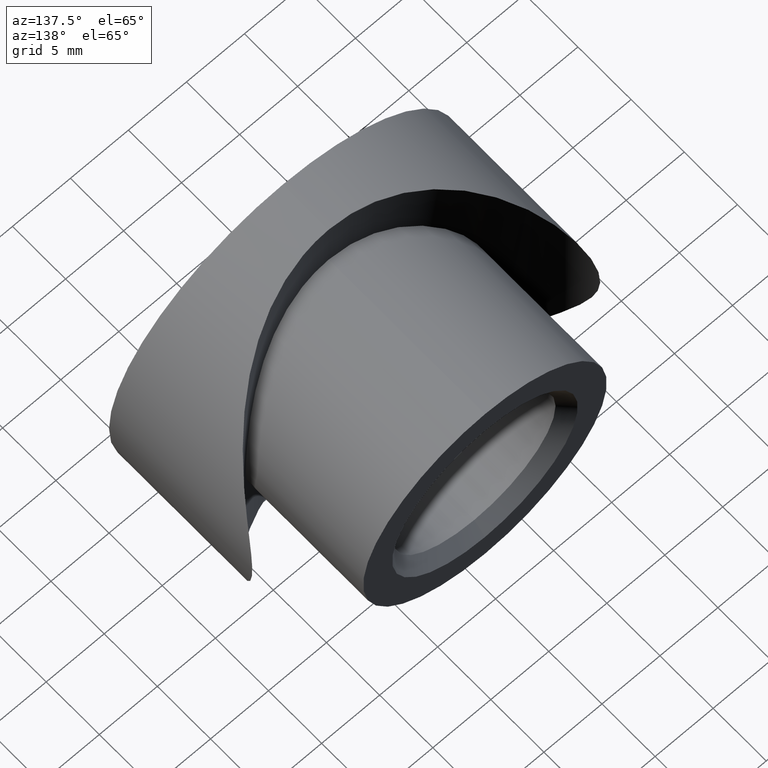
[diagram: clean part render]
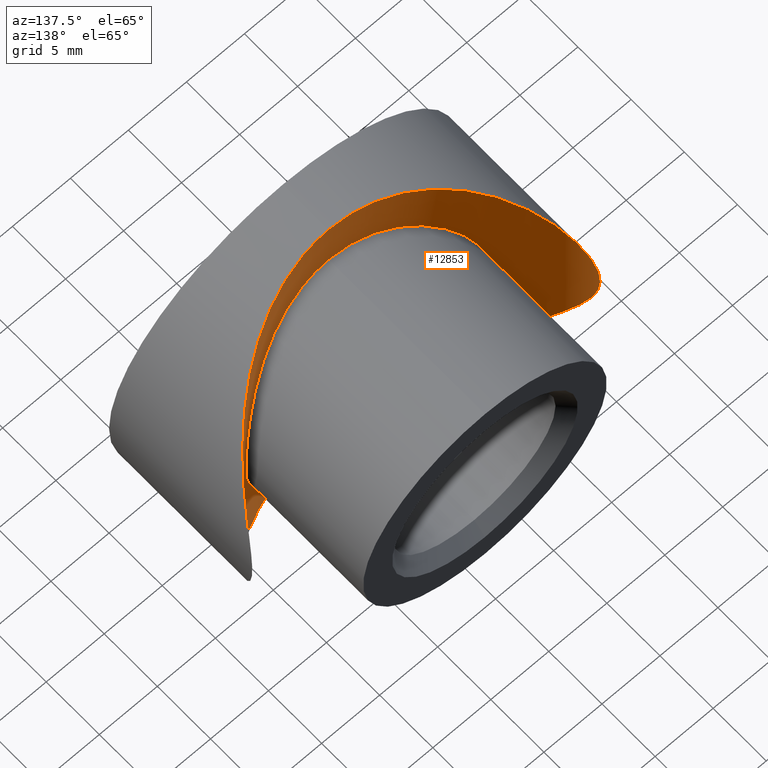
[diagram: same view with one face highlighted and labeled with its STEP entity id]
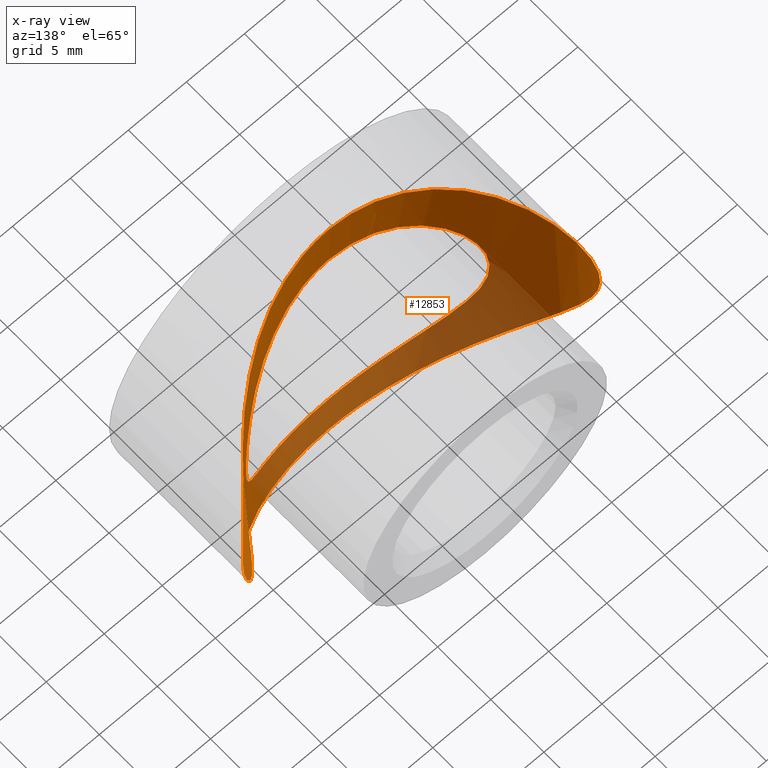
[diagram: x-ray of the same camera — body ghosted, the highlighted face saturated]
A machine part, auxiliary view. The second image highlights one B-rep face of the part: STEP entity #12853.
The next image is the same camera in x-ray: the body ghosted, the highlighted face saturated — about 38% of this face is hidden behind the body in this view.
In plain terms, the highlighted cylindrical surface (partial cylindrical patch) has radius 16.85 mm, axis along (-0, -0, 1).
Its self-contained STEP definition (entity closure, byte-faithful):
#19 = CARTESIAN_POINT ( 'NONE',  ( -2.440493294051567600, 4.474056615321306800, 10.21849543569557100 ) ) ;
#99 = EDGE_CURVE ( 'NONE', #6585, #7809, #5724, .T. ) ;
#359 = FACE_OUTER_BOUND ( 'NONE', #14154, .T. ) ;
#421 = CARTESIAN_POINT ( 'NONE',  ( 3.461674289568071200, 4.646484754574006900, -9.936817656847146900 ) ) ;
#437 = CARTESIAN_POINT ( 'NONE',  ( 10.15094125486535000, 7.674944640244391700, -11.08195168737353200 ) ) ;
#474 = CARTESIAN_POINT ( 'NONE',  ( 14.86345490208285500, 13.21186255510172600, -2.086144652411642000 ) ) ;
#520 = CARTESIAN_POINT ( 'NONE',  ( 11.42496298051143500, 8.736317817504254200, 9.763893191338622700 ) ) ;
#539 = EDGE_CURVE ( 'NONE', #4692, #13563, #5285, .T. ) ;
#575 = CARTESIAN_POINT ( 'NONE',  ( -10.15098324664977800, 7.675207715613304900, 11.08156188437740900 ) ) ;
#621 = CARTESIAN_POINT ( 'NONE',  ( -15.00014806619125600, 13.47419006869983700, -0.2569402839346641700 ) ) ;
#647 = CARTESIAN_POINT ( 'NONE',  ( -5.325484400322363100, 5.160571057418924700, -9.055800181176232800 ) ) ;
#662 = CARTESIAN_POINT ( 'NONE',  ( -7.002433202427369000, 5.816547717601692600, 13.27431832855278800 ) ) ;
#691 = CARTESIAN_POINT ( 'NONE',  ( 8.333667941598610800, 6.498580560797747400, 6.422606914261787200 ) ) ;
#714 = CARTESIAN_POINT ( 'NONE',  ( -7.028626094143886500, 5.804127622911130900, -13.28960197094400000 ) ) ;
#748 = CARTESIAN_POINT ( 'NONE',  ( 1.764616041712050000, 4.389125962453866800, 10.35651631830706700 ) ) ;
#777 = CARTESIAN_POINT ( 'NONE',  ( -2.666443716626810900, 4.504179619731610600, -14.77035801763575100 ) ) ;
#798 = CARTESIAN_POINT ( 'NONE',  ( 5.329144184981958100, 5.153901114324991500, 9.072014395253605200 ) ) ;
#842 = CARTESIAN_POINT ( 'NONE',  ( 10.21912335245930800, 7.752245734262817900, 2.437730159121762200 ) ) ;
#1040 = CARTESIAN_POINT ( 'NONE',  ( -2.784004973221847500, 4.528125502929316100, 10.13020257891039600 ) ) ;
#1094 = CARTESIAN_POINT ( 'NONE',  ( -5.611547982887175000, 5.259048761976461400, 8.881155952800050100 ) ) ;
#1430 = ORIENTED_EDGE ( 'NONE', *, *, #99, .T. ) ;
#1446 = CARTESIAN_POINT ( 'NONE',  ( 10.13257557481867000, 7.660737727560588800, 11.09929284137118100 ) ) ;
#1530 = CARTESIAN_POINT ( 'NONE',  ( 7.846136914485313700, 6.230635582022571800, 12.79375531880228900 ) ) ;
#1578 = CARTESIAN_POINT ( 'NONE',  ( 14.57360096830064000, 12.68965752950876600, -3.586624822361435900 ) ) ;
#1629 = CARTESIAN_POINT ( 'NONE',  ( 14.97275876491494800, 13.42000564760817300, -1.044407058909074100 ) ) ;
#1671 = CARTESIAN_POINT ( 'NONE',  ( -2.143957306134153500, 4.428349662440453500, -14.85569876551880600 ) ) ;
#1716 = CARTESIAN_POINT ( 'NONE',  ( -13.00775074666562500, 10.41298967186178000, 7.525084228617783000 ) ) ;
#1756 = CARTESIAN_POINT ( 'NONE',  ( -8.326004503825913600, 6.498751345552173000, -6.406247300664215800 ) ) ;
#1772 = CARTESIAN_POINT ( 'NONE',  ( -14.77906531523416300, 13.05392880384393800, -2.613598029027482300 ) ) ;
#1822 = CARTESIAN_POINT ( 'NONE',  ( -5.648328352116427800, 5.267222920000024900, -13.90504092608243500 ) ) ;
#1865 = FACE_BOUND ( 'NONE', #8793, .T. ) ;
#1868 = CARTESIAN_POINT ( 'NONE',  ( -0.5322814907385078300, 4.306282967144005300, 14.99294320153237200 ) ) ;
#1944 = CARTESIAN_POINT ( 'NONE',  ( 6.163578132858272200, 5.464946001804571000, 8.507238702020488900 ) ) ;
#2139 = CARTESIAN_POINT ( 'NONE',  ( -8.326075515742022800, 6.498802103674096400, 6.406111241685457500 ) ) ;
#2180 = CARTESIAN_POINT ( 'NONE',  ( -6.451465951790726000, 5.572506776543503900, 8.311810534515849700 ) ) ;
#2229 = CARTESIAN_POINT ( 'NONE',  ( -10.35599211043277600, 7.857755800549794500, 1.767796691163384400 ) ) ;
#2308 = B_SPLINE_CURVE_WITH_KNOTS ( 'NONE', 3,
 ( #11494, #8064, #2809, #3872, #421, #13754, #7125, #8257, #2624, #10494, #7032, #8353, #8509, #13856, #11692, #6283, #10699, #5121, #3047, #12810, #6174, #4165, #8410, #842, #2959, #2905, #12850, #9485, #12697, #691, #7352, #13963, #6228, #2857, #1944, #798, #11641, #11791, #13906, #748, #6124, #9629, #13810, #8462 ),
 .UNSPECIFIED., .F., .F.,
 ( 4, 2, 2, 2, 2, 2, 2, 2, 2, 2, 2, 2, 2, 2, 2, 2, 2, 2, 2, 2, 2, 4 ),
 ( 1.417752910947001400E-019, 0.002110592870796097200, 0.004221185741592194500, 0.006331778612388292600, 0.008442371483184388900, 0.009497667918582440600, 0.01055296435398049100, 0.01266355722477659200, 0.01477415009557269400, 0.01582944653097074000, 0.01688474296636879200, 0.01899533583716489200, 0.02005063227256294300, 0.02110592870796099500, 0.02321652157875710200, 0.02532711444955320500, 0.02638241088495125700, 0.02743770732034931200, 0.02954830019114541200, 0.03165889306194151500, 0.03271418949733956300, 0.03376948593273761800 ),
 .UNSPECIFIED. ) ;
#2392 = CARTESIAN_POINT ( 'NONE',  ( -1.209609030241673400E-016, 4.300000000000002500, -15.00000000000000000 ) ) ;
#2543 = CARTESIAN_POINT ( 'NONE',  ( 14.78138066849109600, 13.05815067896042500, -2.600866842571937000 ) ) ;
#2592 = CARTESIAN_POINT ( 'NONE',  ( 11.99167648984729000, 9.305942778690740300, -9.022788674732321800 ) ) ;
#2624 = CARTESIAN_POINT ( 'NONE',  ( 6.969573530202914000, 5.800002265509831100, -7.881590885390978400 ) ) ;
#2645 = CARTESIAN_POINT ( 'NONE',  ( 14.99893404613760800, 13.47181774934421300, 0.5695243902552720200 ) ) ;
#2682 = CARTESIAN_POINT ( 'NONE',  ( 4.181988682952525200, 4.819197241483200500, -14.41452241154284600 ) ) ;
#2781 = CARTESIAN_POINT ( 'NONE',  ( -1.335934497031235900, 4.350924231119592800, 14.94277808804010000 ) ) ;
#2809 = CARTESIAN_POINT ( 'NONE',  ( 1.414279777334051400, 4.345258246280131700, -10.42779930872081100 ) ) ;
#2831 = CARTESIAN_POINT ( 'NONE',  ( -14.99325789573668100, 13.46067896105227000, -0.5229043018592171000 ) ) ;
#2857 = CARTESIAN_POINT ( 'NONE',  ( 6.431756106645177200, 5.573275251292960400, 8.306324296954375800 ) ) ;
#2875 = CARTESIAN_POINT ( 'NONE',  ( -5.162845310492208700, 5.102250667659851600, 14.09303416019651300 ) ) ;
#2905 = CARTESIAN_POINT ( 'NONE',  ( 9.925958034858357600, 7.533312057363637800, 3.441734859534335600 ) ) ;
#2928 = CARTESIAN_POINT ( 'NONE',  ( 1.836970246836746200E-015, 4.300000000000000700, 15.00000000000000000 ) ) ;
#2959 = CARTESIAN_POINT ( 'NONE',  ( 10.13136139422028700, 7.685440975040791900, 2.779513995792413100 ) ) ;
#2983 = CARTESIAN_POINT ( 'NONE',  ( -12.75905726850694100, 10.13769984885849200, -7.900339878895066700 ) ) ;
#3047 = CARTESIAN_POINT ( 'NONE',  ( 10.40958307178921800, 7.899899136998402400, -1.419496122518947300 ) ) ;
#3195 = CARTESIAN_POINT ( 'NONE',  ( -6.965977455396999800, 5.798280431981828200, 7.885044108746456900 ) ) ;
#3292 = CARTESIAN_POINT ( 'NONE',  ( -10.48198834204433900, 7.957102770271713000, 0.7104192394843993300 ) ) ;
#3343 = CARTESIAN_POINT ( 'NONE',  ( -10.14868047121016700, 7.697927959930035000, -2.783962094005773200 ) ) ;
#3658 = CARTESIAN_POINT ( 'NONE',  ( 1.836970246836746200E-015, 4.300000000000000700, 15.00000000000000000 ) ) ;
#3746 = CARTESIAN_POINT ( 'NONE',  ( 7.859948319320120700, 6.237839921504229500, -12.78536116235524700 ) ) ;
#3795 = CARTESIAN_POINT ( 'NONE',  ( 13.44399684375407800, 10.97225253245963600, -6.717971975358057800 ) ) ;
#3872 = CARTESIAN_POINT ( 'NONE',  ( 2.784865414517606400, 4.517379721739101400, -10.14808899914451800 ) ) ;
#3876 = DIRECTION ( 'NONE',  ( -0.0000000000000000000, -0.0000000000000000000, 1.000000000000000000 ) ) ;
#3877 = CARTESIAN_POINT ( 'NONE',  ( -2.805173298260895900, 4.520744013439695200, -10.14258759114967900 ) ) ;
#3891 = CARTESIAN_POINT ( 'NONE',  ( -14.56759476893175500, 12.67930064239109100, 3.610692206479272600 ) ) ;
#3933 = CARTESIAN_POINT ( 'NONE',  ( -1.076218406673221200, 4.325853754699199500, -14.97097500777757300 ) ) ;
#3990 = CARTESIAN_POINT ( 'NONE',  ( -13.98303764632314700, 11.74270247216324800, 5.448795554080427400 ) ) ;
#4042 = ORIENTED_EDGE ( 'NONE', *, *, #7633, .T. ) ;
#4045 = CARTESIAN_POINT ( 'NONE',  ( -11.43397731633539000, 8.745240753009067400, -9.752422061477974000 ) ) ;
#4093 = CARTESIAN_POINT ( 'NONE',  ( -1.066943131721263900, 4.331683811332991900, 14.96440115017742800 ) ) ;
#4165 = CARTESIAN_POINT ( 'NONE',  ( 10.50025710348714000, 7.971718591966822300, 0.7077182890860049800 ) ) ;
#4308 = CARTESIAN_POINT ( 'NONE',  ( -9.073478233209179700, 6.950295261349985800, -5.294965552928632100 ) ) ;
#4359 = CARTESIAN_POINT ( 'NONE',  ( -7.901633885500487500, 6.265601616771545100, 6.922858995689432000 ) ) ;
#4408 = CARTESIAN_POINT ( 'NONE',  ( -10.40978453266293100, 7.900056494442805100, 1.418859077609405900 ) ) ;
#4692 = VERTEX_POINT ( 'NONE', #6574 ) ;
#4803 = CARTESIAN_POINT ( 'NONE',  ( 12.25999243050092200, 9.584742660744014500, -8.654428079111168500 ) ) ;
#4853 = CARTESIAN_POINT ( 'NONE',  ( 6.990948076457038400, 5.811292619339082100, 13.28038721688914400 ) ) ;
#4906 = CARTESIAN_POINT ( 'NONE',  ( 14.85580664443929200, 13.19750104174214300, 2.139843478267389600 ) ) ;
#4944 = CARTESIAN_POINT ( 'NONE',  ( 14.44802696036877900, 12.47516734027195000, -4.060478104063554900 ) ) ;
#4980 = CARTESIAN_POINT ( 'NONE',  ( -8.525651947809647500, 6.614408464622582300, -6.138026012869407700 ) ) ;
#4998 = CARTESIAN_POINT ( 'NONE',  ( -1.209609030241673400E-016, 4.300000000000002500, -15.00000000000000000 ) ) ;
#5048 = CARTESIAN_POINT ( 'NONE',  ( -0.2657497645407889700, 4.300000000000002500, 15.00000000000000400 ) ) ;
#5082 = CARTESIAN_POINT ( 'NONE',  ( -7.900451018919068400, 6.264963492491887100, -6.924249358064567000 ) ) ;
#5097 = CARTESIAN_POINT ( 'NONE',  ( -14.96517098375472300, 13.40615742702241200, -1.055873412847778000 ) ) ;
#5121 = CARTESIAN_POINT ( 'NONE',  ( 10.35635509687193500, 7.858039068241345700, -1.765680603605728200 ) ) ;
#5138 = CARTESIAN_POINT ( 'NONE',  ( -7.874109621070600100, 6.225036902050723200, -12.80306368135971000 ) ) ;
#5196 = CARTESIAN_POINT ( 'NONE',  ( -14.43998511081309600, 12.46175235854891700, 4.088953916542727100 ) ) ;
#5285 = B_SPLINE_CURVE_WITH_KNOTS ( 'NONE', 3,
 ( #2928, #5048, #1868, #4093, #2781, #12825, #8430, #10622, #11766, #2875, #10667, #6143, #662, #13833, #9445, #8378, #575, #13929, #12717, #7236, #13777, #1716, #9508, #3990, #11659, #5196, #3891, #9556, #9397, #11569, #8328, #621, #2831, #5097, #10577, #12773, #1772, #12869, #6101, #8222, #7181, #10462, #7288, #6195, #2983, #6301, #4045, #11717, #13876, #7138, #6251, #5138, #714, #1822, #7327, #8280, #10520, #777, #1671, #3933, #9357, #4998 ),
 .UNSPECIFIED., .F., .F.,
 ( 4, 2, 2, 2, 2, 2, 2, 2, 2, 2, 2, 2, 2, 2, 2, 2, 2, 2, 2, 2, 2, 2, 2, 2, 2, 2, 2, 2, 2, 2, 4 ),
 ( 0.05101021095424455200, 0.05180678021875403200, 0.05260334948326352000, 0.05419648801228248900, 0.05578962654130145700, 0.05738276507032041800, 0.05897590359933938700, 0.06056904212835835500, 0.06375531918639629200, 0.06534845771541525300, 0.06694159624443421500, 0.07012787330247215200, 0.07172101183149111300, 0.07331415036051007500, 0.07490728888952903600, 0.07650042741854799800, 0.07729699668305747800, 0.07809356594756697300, 0.07968670447658592100, 0.08127984300560489600, 0.08287298153462384400, 0.08446612006364281900, 0.08605925859266178000, 0.08924553565069970300, 0.09083867417971866500, 0.09243181270873762600, 0.09561808976677554900, 0.09721122829579451100, 0.09880436682481347200, 0.1003975053538324300, 0.1019906438828514000 ),
 .UNSPECIFIED. ) ;
#5420 = CARTESIAN_POINT ( 'NONE',  ( -3.450228734883388400, 4.653536222442165000, 9.923084684596412700 ) ) ;
#5468 = CARTESIAN_POINT ( 'NONE',  ( -10.49982363229692000, 7.971373222495260300, 0.3572885946436344400 ) ) ;
#5510 = CARTESIAN_POINT ( 'NONE',  ( -10.35936459809205700, 7.860382643082397500, -1.748600922364211400 ) ) ;
#5693 = ORIENTED_EDGE ( 'NONE', *, *, #539, .F. ) ;
#5724 = B_SPLINE_CURVE_WITH_KNOTS ( 'NONE', 3,
 ( #14248, #8797, #11977, #19, #1040, #5420, #12027, #7593, #8696, #7643, #1094, #2180, #3195, #7682, #4359, #2139, #6613, #9809, #13093, #9863, #14205, #2229, #4408, #3292, #5468, #9905, #13190, #12087, #5510, #3343, #9761, #13147, #10893, #4308, #6513, #4980, #1756, #5082, #13911, #6179, #10606, #12660, #647, #6086, #12756, #11553, #3877, #13761, #8316, #11499 ),
 .UNSPECIFIED., .F., .F.,
 ( 4, 2, 2, 2, 2, 2, 2, 2, 2, 2, 2, 2, 2, 2, 2, 2, 2, 2, 2, 2, 2, 2, 2, 2, 4 ),
 ( 0.03376948593273761800, 0.03587532717272544400, 0.03692824779271935300, 0.03798116841271326900, 0.03903408903270717800, 0.04008700965270108700, 0.04219285089268890600, 0.04324577151268281500, 0.04429869213267673100, 0.04640453337266455000, 0.04851037461265236800, 0.04956329523264627100, 0.05061621585264018000, 0.05166913647263408900, 0.05272205709262799100, 0.05482789833261581000, 0.05588081895260971900, 0.05693373957260362800, 0.05798666019259753100, 0.05903958081259144700, 0.06114542205257926500, 0.06219834267257317400, 0.06325126329256708400, 0.06535710453255491600, 0.06746294577254273500 ),
 .UNSPECIFIED. ) ;
#5914 = CARTESIAN_POINT ( 'NONE',  ( 8.253771874938468800, 6.452926759699822800, 12.53406303612567100 ) ) ;
#5998 = CARTESIAN_POINT ( 'NONE',  ( 14.43532073380668700, 12.45404174444464700, 4.105032956533770000 ) ) ;
#6049 = CARTESIAN_POINT ( 'NONE',  ( 14.77182981645566400, 13.04067785760763000, 2.654117666747686200 ) ) ;
#6086 = CARTESIAN_POINT ( 'NONE',  ( -4.721420999969095300, 4.971903518986631600, -9.384907285664525000 ) ) ;
#6101 = CARTESIAN_POINT ( 'NONE',  ( -14.44399217823189700, 12.46845515835569700, -4.074659422287441000 ) ) ;
#6124 = CARTESIAN_POINT ( 'NONE',  ( 1.418201932744944400, 4.356086084407026600, 10.40979524970072500 ) ) ;
#6143 = CARTESIAN_POINT ( 'NONE',  ( -6.559926235587895800, 5.621551197036414000, 13.49889665633021700 ) ) ;
#6174 = CARTESIAN_POINT ( 'NONE',  ( 10.49987041450948400, 7.971410496351680300, -0.3595655469009801900 ) ) ;
#6179 = CARTESIAN_POINT ( 'NONE',  ( -6.965115453482495100, 5.797903316631781000, -7.885754440222853200 ) ) ;
#6195 = CARTESIAN_POINT ( 'NONE',  ( -12.99422156758266500, 10.41712780554143500, -7.507295084772245300 ) ) ;
#6228 = CARTESIAN_POINT ( 'NONE',  ( 6.948796315636088600, 5.796952410802858500, 7.878879343240670100 ) ) ;
#6251 = CARTESIAN_POINT ( 'NONE',  ( -9.049063134012019600, 6.928700381237637100, -11.97265496391931300 ) ) ;
#6283 = CARTESIAN_POINT ( 'NONE',  ( 9.935856290285059300, 7.537294125792824300, -3.462782069783514800 ) ) ;
#6301 = CARTESIAN_POINT ( 'NONE',  ( -12.00201883562612800, 9.299209652147251100, -9.043627270165085700 ) ) ;
#6513 = CARTESIAN_POINT ( 'NONE',  ( -8.899387944290790400, 6.840176219270280600, -5.582382886085800200 ) ) ;
#6574 = CARTESIAN_POINT ( 'NONE',  ( 1.836970246836746200E-015, 4.300000000000000700, 15.00000000000000000 ) ) ;
#6585 = VERTEX_POINT ( 'NONE', #8209 ) ;
#6613 = CARTESIAN_POINT ( 'NONE',  ( -8.525017774536793900, 6.614050403424635700, 6.138824014883322600 ) ) ;
#6907 = CARTESIAN_POINT ( 'NONE',  ( -1.209609030241673400E-016, 4.300000000000002500, -15.00000000000000000 ) ) ;
#6916 = CARTESIAN_POINT ( 'NONE',  ( 1.060494380857258200, 4.325119671351614200, 14.97179856256042100 ) ) ;
#6965 = CARTESIAN_POINT ( 'NONE',  ( 6.541798558420769200, 5.613887657651731400, 13.50770981598470600 ) ) ;
#7000 = CARTESIAN_POINT ( 'NONE',  ( 13.97796427244357900, 11.73503882822342200, 5.462191796381528500 ) ) ;
#7032 = CARTESIAN_POINT ( 'NONE',  ( 7.899254498436381900, 6.264324412577663800, -6.925628716662942000 ) ) ;
#7047 = CARTESIAN_POINT ( 'NONE',  ( 13.99110574761020100, 11.75464297532221500, -5.428352384317932400 ) ) ;
#7097 = CARTESIAN_POINT ( 'NONE',  ( 8.272414721313655400, 6.463356360601492800, -12.52184461082290000 ) ) ;
#7125 = CARTESIAN_POINT ( 'NONE',  ( 5.326437407388772800, 5.152689141092361400, -9.074318495472207100 ) ) ;
#7138 = CARTESIAN_POINT ( 'NONE',  ( -9.426397277330545800, 7.176551912363677000, -11.67750838880630000 ) ) ;
#7181 = CARTESIAN_POINT ( 'NONE',  ( -13.98914351858305100, 11.75178312325456400, -5.433168437229279700 ) ) ;
#7236 = CARTESIAN_POINT ( 'NONE',  ( -11.98306091132917800, 9.297277929764920400, 9.034128449081267200 ) ) ;
#7288 = CARTESIAN_POINT ( 'NONE',  ( -13.42755586063776200, 10.96446696046471900, -6.701493657889155700 ) ) ;
#7292 = EDGE_CURVE ( 'NONE', #13563, #4692, #10372, .T. ) ;
#7327 = CARTESIAN_POINT ( 'NONE',  ( -5.167033004524740600, 5.103700707654264000, -14.09138109826325200 ) ) ;
#7352 = CARTESIAN_POINT ( 'NONE',  ( 7.910490121228924000, 6.262883942689890100, 6.937275636108480200 ) ) ;
#7504 = AXIS2_PLACEMENT_3D ( 'NONE', #11551, #3876, #8357 ) ;
#7593 = CARTESIAN_POINT ( 'NONE',  ( -4.408115415652025200, 4.883545068547489300, 9.536074794243152300 ) ) ;
#7633 = EDGE_CURVE ( 'NONE', #7809, #6585, #2308, .T. ) ;
#7638 = CARTESIAN_POINT ( 'NONE',  ( -1.463510268258609300E-016, 4.300000000000001600, -10.50000000000000000 ) ) ;
#7643 = CARTESIAN_POINT ( 'NONE',  ( -5.318564483717355400, 5.158291973930054100, 9.059812979693660400 ) ) ;
#7682 = CARTESIAN_POINT ( 'NONE',  ( -7.675155030550298500, 6.147203455420012100, 7.173157316238961900 ) ) ;
#7809 = VERTEX_POINT ( 'NONE', #7638 ) ;
#7989 = CARTESIAN_POINT ( 'NONE',  ( 3.672130553410284400, 4.696711018873685400, -14.55303561643875700 ) ) ;
#8032 = CARTESIAN_POINT ( 'NONE',  ( 11.41708273195578900, 8.751120276795928600, -9.739673628911338800 ) ) ;
#8064 = CARTESIAN_POINT ( 'NONE',  ( 0.7147938796123114400, 4.300000000000001600, -10.49999999999999800 ) ) ;
#8086 = CARTESIAN_POINT ( 'NONE',  ( 14.14376593525134000, 11.98746433354530400, 5.018332933447280400 ) ) ;
#8135 = CARTESIAN_POINT ( 'NONE',  ( 13.01216909519723000, 10.41844268921738200, -7.517287710855883100 ) ) ;
#8175 = CARTESIAN_POINT ( 'NONE',  ( 2.635966951328876400, 4.499120664519748100, 14.77605992027063700 ) ) ;
#8209 = CARTESIAN_POINT ( 'NONE',  ( 1.308673658326136700E-014, 4.299999999999901200, 10.50000000000016500 ) ) ;
#8222 = CARTESIAN_POINT ( 'NONE',  ( -14.15298966602539800, 12.00172068661634500, -4.992458609326505800 ) ) ;
#8257 = CARTESIAN_POINT ( 'NONE',  ( 6.454450770850108700, 5.573576937626946800, -8.309889100269140600 ) ) ;
#8280 = CARTESIAN_POINT ( 'NONE',  ( -4.188347804747557700, 4.820894276910030900, -14.41259844694235200 ) ) ;
#8316 = CARTESIAN_POINT ( 'NONE',  ( -0.7131846461751391000, 4.300000000000001600, -10.50000000000000200 ) ) ;
#8328 = CARTESIAN_POINT ( 'NONE',  ( -14.99969663701134200, 13.47330792371734500, 0.5393904581189303800 ) ) ;
#8353 = CARTESIAN_POINT ( 'NONE',  ( 8.325260658733650800, 6.498324522799771700, -6.407229488341706700 ) ) ;
#8357 = DIRECTION ( 'NONE',  ( 1.000000000000000000, 0.0000000000000000000, 0.0000000000000000000 ) ) ;
#8378 = CARTESIAN_POINT ( 'NONE',  ( -9.446709176307793500, 7.167193835095333500, 11.69116089175237100 ) ) ;
#8410 = CARTESIAN_POINT ( 'NONE',  ( 10.42896389989966700, 7.914048284840936800, 1.406681790766238300 ) ) ;
#8430 = CARTESIAN_POINT ( 'NONE',  ( -2.653514126291002500, 4.502106402088466900, 14.77269377907057900 ) ) ;
#8462 = CARTESIAN_POINT ( 'NONE',  ( 1.308673658326136700E-014, 4.299999999999901200, 10.50000000000016500 ) ) ;
#8509 = CARTESIAN_POINT ( 'NONE',  ( 8.526722758909015100, 6.615038404519863100, -6.136531981277966200 ) ) ;
#8696 = CARTESIAN_POINT ( 'NONE',  ( -4.716755428665000400, 4.970566388631252300, 9.387201799292729000 ) ) ;
#8793 = EDGE_LOOP ( 'NONE', ( #4042, #1430 ) ) ;
#8797 = CARTESIAN_POINT ( 'NONE',  ( -0.7082383648102347200, 4.299999999999991800, 10.50000000000002000 ) ) ;
#9115 = CARTESIAN_POINT ( 'NONE',  ( 14.15709574510789700, 12.00807215158228500, -4.980924165751826400 ) ) ;
#9168 = CARTESIAN_POINT ( 'NONE',  ( 5.164883504442180100, 5.102940254754956900, -14.09224836861581700 ) ) ;
#9208 = CARTESIAN_POINT ( 'NONE',  ( 7.001321540830851100, 5.815959356028688600, -13.27500449401593300 ) ) ;
#9253 = CARTESIAN_POINT ( 'NONE',  ( 14.96882267322270700, 13.41232731916936600, 1.099212875681463600 ) ) ;
#9357 = CARTESIAN_POINT ( 'NONE',  ( -0.5401560524410131700, 4.300000000000002500, -15.00000000000000200 ) ) ;
#9397 = CARTESIAN_POINT ( 'NONE',  ( -14.85861374278175100, 13.20275139574639800, 2.121870652778446300 ) ) ;
#9445 = CARTESIAN_POINT ( 'NONE',  ( -8.269833434487631900, 6.461857653447498100, 12.52360747869698600 ) ) ;
#9485 = CARTESIAN_POINT ( 'NONE',  ( 9.410165324295569200, 7.168717958224782200, 4.707973348129954200 ) ) ;
#9508 = CARTESIAN_POINT ( 'NONE',  ( -13.43856042997013300, 10.96530815620931800, 6.727849047405060300 ) ) ;
#9556 = CARTESIAN_POINT ( 'NONE',  ( -14.77637379086408000, 13.04899126333831900, 2.628819726493829100 ) ) ;
#9629 = CARTESIAN_POINT ( 'NONE',  ( 0.7143741115990192000, 4.311457576290459700, 10.48164125943119300 ) ) ;
#9761 = CARTESIAN_POINT ( 'NONE',  ( -9.943335118550265900, 7.542720332200675100, -3.442328668481938100 ) ) ;
#9809 = CARTESIAN_POINT ( 'NONE',  ( -9.083275744307608000, 6.951210027813482700, 5.309280094361094300 ) ) ;
#9863 = CARTESIAN_POINT ( 'NONE',  ( -9.939805937864942800, 7.540092965993865800, 3.452984079600334200 ) ) ;
#9905 = CARTESIAN_POINT ( 'NONE',  ( -10.50017377137898400, 7.971652196843844100, -0.3468461042711709600 ) ) ;
#10230 = CARTESIAN_POINT ( 'NONE',  ( 2.111734619650756700, 4.424515752859717200, 14.86001269938503600 ) ) ;
#10269 = CARTESIAN_POINT ( 'NONE',  ( 9.445496070066989000, 7.166563697048010400, -11.69189270846919000 ) ) ;
#10367 = CARTESIAN_POINT ( 'NONE',  ( 5.639371925220494600, 5.264077237768026100, -13.90863078812606600 ) ) ;
#10372 = B_SPLINE_CURVE_WITH_KNOTS ( 'NONE', 3,
 ( #2392, #13457, #11513, #7989, #2682, #9168, #10367, #12450, #9208, #3746, #7097, #10269, #437, #12486, #8032, #2592, #4803, #8135, #3795, #7047, #9115, #4944, #1578, #2543, #474, #1629, #11466, #2645, #9253, #4906, #6049, #13687, #5998, #8086, #7000, #12582, #11430, #13542, #520, #1446, #13639, #5914, #1530, #4853, #6965, #12527, #11334, #8175, #10230, #6916, #12629, #3658 ),
 .UNSPECIFIED., .F., .F.,
 ( 4, 2, 2, 2, 2, 2, 2, 2, 2, 2, 2, 2, 2, 2, 2, 2, 2, 2, 2, 2, 2, 2, 2, 2, 2, 4 ),
 ( 1.345763858265831100E-020, 0.003188138184640286700, 0.004782207276960428700, 0.006376276369280571600, 0.007970345461600714500, 0.009564414553920853900, 0.01275255273856113400, 0.01434662183088127700, 0.01594069092320142200, 0.01912882910784170800, 0.02072289820016185200, 0.02231696729248199400, 0.02391103638480213800, 0.02550510547712228300, 0.02709917456944242400, 0.02869324366176256500, 0.03028731275408271300, 0.03188138184640285800, 0.03506952003104313300, 0.03825765821568342200, 0.04144579640032370500, 0.04303986549264384600, 0.04463393458496398700, 0.04782207276960427600, 0.04941614186192441700, 0.05101021095424455200 ),
 .UNSPECIFIED. ) ;
#10462 = CARTESIAN_POINT ( 'NONE',  ( -13.62644274158377800, 11.23321246288922400, -6.287727241313606700 ) ) ;
#10494 = CARTESIAN_POINT ( 'NONE',  ( 7.675201938972725700, 6.147250365135433500, -7.173031626542932100 ) ) ;
#10520 = CARTESIAN_POINT ( 'NONE',  ( -3.688461600289147000, 4.700425256278217400, -14.54883669185504600 ) ) ;
#10577 = CARTESIAN_POINT ( 'NONE',  ( -14.94377499687288100, 13.36477907024834400, -1.323947997046356100 ) ) ;
#10606 = CARTESIAN_POINT ( 'NONE',  ( -6.451729291112403800, 5.572711916710136200, -8.311383322978679500 ) ) ;
#10622 = CARTESIAN_POINT ( 'NONE',  ( -3.676134840234532000, 4.697658795714709800, 14.55196383121640100 ) ) ;
#10667 = CARTESIAN_POINT ( 'NONE',  ( -5.641186031137967100, 5.264712007498587800, 13.90790650373848100 ) ) ;
#10699 = CARTESIAN_POINT ( 'NONE',  ( 10.14628173932032200, 7.696125759397407500, -2.791028916395215600 ) ) ;
#10893 = CARTESIAN_POINT ( 'NONE',  ( -9.395795059036922600, 7.161481239175544500, -4.699330022864847600 ) ) ;
#11334 = CARTESIAN_POINT ( 'NONE',  ( 4.188683327319459700, 4.794944217878040100, 14.44216071532030000 ) ) ;
#11430 = CARTESIAN_POINT ( 'NONE',  ( 12.99298480057483300, 10.39542840623207800, 7.549803033725376100 ) ) ;
#11466 = CARTESIAN_POINT ( 'NONE',  ( 15.00101064576358400, 13.47587563298853700, -0.5119181156875961500 ) ) ;
#11494 = CARTESIAN_POINT ( 'NONE',  ( -1.463510268258609300E-016, 4.300000000000001600, -10.50000000000000000 ) ) ;
#11499 = CARTESIAN_POINT ( 'NONE',  ( -1.463510268258609300E-016, 4.300000000000001600, -10.50000000000000000 ) ) ;
#11513 = CARTESIAN_POINT ( 'NONE',  ( 2.133117834301716100, 4.402959882535904900, -14.88460151040264800 ) ) ;
#11551 = CARTESIAN_POINT ( 'NONE',  ( 0.0000000000000000000, 21.15000000000000200, -15.00000000000000000 ) ) ;
#11553 = CARTESIAN_POINT ( 'NONE',  ( -3.463101974801660300, 4.646850823257374900, -9.936197257951944200 ) ) ;
#11569 = CARTESIAN_POINT ( 'NONE',  ( -14.97129643907274700, 13.41711918697817300, 1.068185544609506100 ) ) ;
#11641 = CARTESIAN_POINT ( 'NONE',  ( 4.733142623277710300, 4.964904718521064600, 9.398548494076788300 ) ) ;
#11659 = CARTESIAN_POINT ( 'NONE',  ( -14.14741360571198400, 11.99306244705144100, 5.008333295721174100 ) ) ;
#11692 = CARTESIAN_POINT ( 'NONE',  ( 9.406418275277459900, 7.166213078375444700, -4.715018039683159600 ) ) ;
#11717 = CARTESIAN_POINT ( 'NONE',  ( -10.47633654916444900, 7.946147538683610500, -10.74512753961346700 ) ) ;
#11766 = CARTESIAN_POINT ( 'NONE',  ( -4.177865733418861400, 4.818108858824110100, 14.41575601396130900 ) ) ;
#11767 = CYLINDRICAL_SURFACE ( 'NONE', #7504, 16.85000000000000100 ) ;
#11791 = CARTESIAN_POINT ( 'NONE',  ( 3.449934996594035100, 4.643701296713561400, 9.941493922297445000 ) ) ;
#11874 = ORIENTED_EDGE ( 'NONE', *, *, #7292, .F. ) ;
#11977 = CARTESIAN_POINT ( 'NONE',  ( -1.406779222855370800, 4.344469560069773800, 10.42907465543850300 ) ) ;
#12027 = CARTESIAN_POINT ( 'NONE',  ( -3.774850734052636300, 4.725033044468339900, 9.804014786541829500 ) ) ;
#12087 = CARTESIAN_POINT ( 'NONE',  ( -10.41249121968262200, 7.902187812469846600, -1.397757498020344200 ) ) ;
#12450 = CARTESIAN_POINT ( 'NONE',  ( 6.557597710824354400, 5.620577281123541300, -13.50001623607780700 ) ) ;
#12486 = CARTESIAN_POINT ( 'NONE',  ( 11.11216060194302800, 8.476545731976752800, -10.08626304172547900 ) ) ;
#12527 = CARTESIAN_POINT ( 'NONE',  ( 5.161455713971250200, 5.079669098465863000, 14.11994285823906000 ) ) ;
#12582 = CARTESIAN_POINT ( 'NONE',  ( 13.42641931722831900, 10.94883925285766300, 6.753322293999128900 ) ) ;
#12629 = CARTESIAN_POINT ( 'NONE',  ( 0.5318099816551304900, 4.300000000000006000, 15.00000000000000500 ) ) ;
#12660 = CARTESIAN_POINT ( 'NONE',  ( -5.615390111974732300, 5.260429596454253300, -8.878675001775768300 ) ) ;
#12697 = CARTESIAN_POINT ( 'NONE',  ( 9.083154792733015600, 6.951041870773990700, 5.310009411216053200 ) ) ;
#12717 = CARTESIAN_POINT ( 'NONE',  ( -11.41033188374414700, 8.744956848858823400, 9.747489519970590900 ) ) ;
#12756 = CARTESIAN_POINT ( 'NONE',  ( -4.411114320024923400, 4.884370671102361800, -9.534665346244347400 ) ) ;
#12773 = CARTESIAN_POINT ( 'NONE',  ( -14.86032254965156900, 13.20596965960336700, -2.108983533482814600 ) ) ;
#12810 = CARTESIAN_POINT ( 'NONE',  ( 10.48137287537423900, 7.956614715867449000, -0.7177824306125500900 ) ) ;
#12825 = CARTESIAN_POINT ( 'NONE',  ( -2.132629552896333300, 4.426990047665310800, 14.85722864686382900 ) ) ;
#12850 = CARTESIAN_POINT ( 'NONE',  ( 9.808025811947199900, 7.447760423465894100, 3.764197894837169900 ) ) ;
#12853 = ADVANCED_FACE ( 'NONE', ( #1865, #359 ), #11767, .F. ) ;
#12869 = CARTESIAN_POINT ( 'NONE',  ( -14.57141675354347900, 12.68590204453318600, -3.595202364797560200 ) ) ;
#13093 = CARTESIAN_POINT ( 'NONE',  ( -9.404576669756631100, 7.164891876736381200, 4.719828259487602700 ) ) ;
#13147 = CARTESIAN_POINT ( 'NONE',  ( -9.544543049773267300, 7.262935289255697300, -4.389656359720748700 ) ) ;
#13190 = CARTESIAN_POINT ( 'NONE',  ( -10.48268594818787100, 7.957661448109183400, -0.6978500805362053400 ) ) ;
#13457 = CARTESIAN_POINT ( 'NONE',  ( 1.080943122700194900, 4.300000000000001600, -14.99999999999999600 ) ) ;
#13542 = CARTESIAN_POINT ( 'NONE',  ( 11.99225782136189600, 9.289805375145268900, 9.055547041565299400 ) ) ;
#13563 = VERTEX_POINT ( 'NONE', #6907 ) ;
#13639 = CARTESIAN_POINT ( 'NONE',  ( 9.423192148295527200, 7.151757334815463300, 11.70954291015196000 ) ) ;
#13687 = CARTESIAN_POINT ( 'NONE',  ( 14.56166851739491400, 12.66908780113049800, 3.634433477831240800 ) ) ;
#13754 = CARTESIAN_POINT ( 'NONE',  ( 4.728952447536150800, 4.964011828374312400, -9.400028871308196100 ) ) ;
#13761 = CARTESIAN_POINT ( 'NONE',  ( -1.432462923642689300, 4.346750258589359800, -10.42540791766961800 ) ) ;
#13777 = CARTESIAN_POINT ( 'NONE',  ( -12.25374682356413000, 9.578102733238870000, 8.663302304420932700 ) ) ;
#13810 = CARTESIAN_POINT ( 'NONE',  ( 0.3549182187166242100, 4.299999999999990900, 10.50000000000000900 ) ) ;
#13833 = CARTESIAN_POINT ( 'NONE',  ( -7.856434628655999400, 6.236071457302137400, 12.78741697012592300 ) ) ;
#13856 = CARTESIAN_POINT ( 'NONE',  ( 9.086993456371299500, 6.953539586172090600, -5.303268141631338800 ) ) ;
#13876 = CARTESIAN_POINT ( 'NONE',  ( -10.13939869812070100, 7.684978235127865700, -11.06407528179623500 ) ) ;
#13906 = CARTESIAN_POINT ( 'NONE',  ( 2.788232076226067500, 4.518062800812220600, 10.14696811827140300 ) ) ;
#13911 = CARTESIAN_POINT ( 'NONE',  ( -7.673771840802762900, 6.146499501807621600, -7.174622974642041100 ) ) ;
#13929 = CARTESIAN_POINT ( 'NONE',  ( -11.10805511327926400, 8.473008693083624400, 10.09068779955624100 ) ) ;
#13963 = CARTESIAN_POINT ( 'NONE',  ( 7.198771804423084400, 5.912871690396729100, 7.651182673952727800 ) ) ;
#14154 = EDGE_LOOP ( 'NONE', ( #11874, #5693 ) ) ;
#14205 = CARTESIAN_POINT ( 'NONE',  ( -10.14575051849743500, 7.695723348575616500, 2.792929885791200800 ) ) ;
#14248 = CARTESIAN_POINT ( 'NONE',  ( 1.308673658326136700E-014, 4.299999999999901200, 10.50000000000016500 ) ) ;